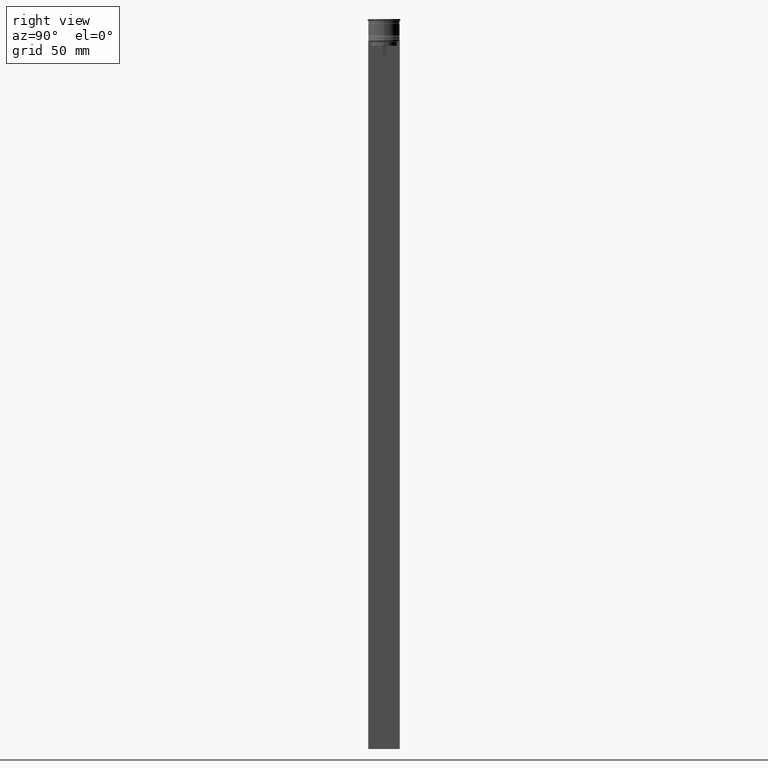
[diagram: clean part render]
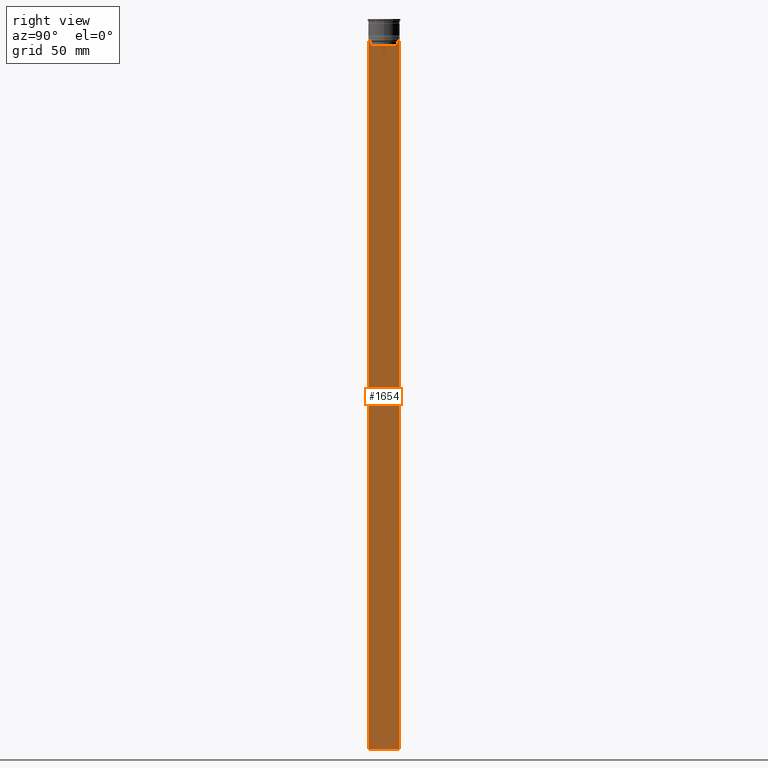
[diagram: same view with one face highlighted and labeled with its STEP entity id]
A machine part, right view. The second image highlights one B-rep face of the part: STEP entity #1654.
In plain terms, the highlighted planar face has unit normal (-1, 0, 0).
Its self-contained STEP definition (entity closure, byte-faithful):
#24 = CARTESIAN_POINT ( 'NONE',  ( 0.5000000000000000000, 8.885943956609230199, -14.00000000000000178 ) ) ;
#26 = ORIENTED_EDGE ( 'NONE', *, *, #1780, .T. ) ;
#85 = VECTOR ( 'NONE', #2593, 1000.000000000000000 ) ;
#148 = ORIENTED_EDGE ( 'NONE', *, *, #708, .T. ) ;
#163 = AXIS2_PLACEMENT_3D ( 'NONE', #1417, #1444, #1217 ) ;
#218 = DIRECTION ( 'NONE',  ( 0.000000000000000000, 0.000000000000000000, -1.000000000000000000 ) ) ;
#224 = EDGE_CURVE ( 'NONE', #2005, #2342, #238, .T. ) ;
#238 = B_SPLINE_CURVE_WITH_KNOTS ( 'NONE', 3,
 ( #476, #2098, #284, #2519 ),
 .UNSPECIFIED., .F., .F.,
 ( 4, 4 ),
 ( 0.03898465126933130243, 0.03969388910599658260 ),
 .UNSPECIFIED. ) ;
#260 = VECTOR ( 'NONE', #2216, 1000.000000000000000 ) ;
#284 = CARTESIAN_POINT ( 'NONE',  ( 0.5000000000000000000, -8.719005764482790966, -14.16667454151159689 ) ) ;
#343 = EDGE_CURVE ( 'NONE', #1700, #2133, #2190, .T. ) ;
#353 = CARTESIAN_POINT ( 'NONE',  ( 0.5000000000000000000, -10.00000000000000178, -14.00000000000000178 ) ) ;
#377 = CARTESIAN_POINT ( 'NONE',  ( 0.5000000000000000000, -10.00000000000000178, -14.00000000000000178 ) ) ;
#403 = CARTESIAN_POINT ( 'NONE',  ( 0.5000000000000000000, 8.385105843100616241, -14.50000000000000000 ) ) ;
#448 = ORIENTED_EDGE ( 'NONE', *, *, #2173, .T. ) ;
#470 = ORIENTED_EDGE ( 'NONE', *, *, #2498, .T. ) ;
#473 = CARTESIAN_POINT ( 'NONE',  ( 0.5000000000000000000, -8.385105843100616241, 0.000000000000000000 ) ) ;
#476 = CARTESIAN_POINT ( 'NONE',  ( 0.5000000000000000000, -8.385105843100616241, -14.50000000000000000 ) ) ;
#577 = ORIENTED_EDGE ( 'NONE', *, *, #2363, .T. ) ;
#588 = VERTEX_POINT ( 'NONE', #1536 ) ;
#589 = CARTESIAN_POINT ( 'NONE',  ( 0.5000000000000000000, 8.885943956609230199, -14.00000000000000178 ) ) ;
#615 = LINE ( 'NONE', #2482, #1241 ) ;
#649 = VECTOR ( 'NONE', #2002, 1000.000000000000000 ) ;
#708 = EDGE_CURVE ( 'NONE', #1750, #1871, #2006, .T. ) ;
#768 = DIRECTION ( 'NONE',  ( 0.000000000000000000, -1.000000000000000000, 0.000000000000000000 ) ) ;
#780 = ORIENTED_EDGE ( 'NONE', *, *, #2158, .T. ) ;
#785 = CARTESIAN_POINT ( 'NONE',  ( 0.5000000000000000000, -10.00000000000000178, -14.00000000000000178 ) ) ;
#791 = LINE ( 'NONE', #2588, #649 ) ;
#799 = ORIENTED_EDGE ( 'NONE', *, *, #224, .T. ) ;
#829 = EDGE_CURVE ( 'NONE', #2471, #885, #1225, .T. ) ;
#869 = VERTEX_POINT ( 'NONE', #1466 ) ;
#885 = VERTEX_POINT ( 'NONE', #403 ) ;
#921 = DIRECTION ( 'NONE',  ( 0.000000000000000000, 0.000000000000000000, -1.000000000000000000 ) ) ;
#1030 = VECTOR ( 'NONE', #1835, 1000.000000000000000 ) ;
#1031 = CARTESIAN_POINT ( 'NONE',  ( 0.5000000000000000000, 8.719005771582347464, -14.16667453442325453 ) ) ;
#1136 = LINE ( 'NONE', #1770, #2495 ) ;
#1181 = CARTESIAN_POINT ( 'NONE',  ( 0.5000000000000000000, -10.00000000000000178, -14.00000000000000178 ) ) ;
#1217 = DIRECTION ( 'NONE',  ( 0.000000000000000000, 0.000000000000000000, 1.000000000000000000 ) ) ;
#1225 = B_SPLINE_CURVE_WITH_KNOTS ( 'NONE', 3,
 ( #589, #1031, #1238, #1428 ),
 .UNSPECIFIED., .F., .F.,
 ( 4, 4 ),
 ( 0.01511546479386908018, 0.01582316445439079997 ),
 .UNSPECIFIED. ) ;
#1229 = ORIENTED_EDGE ( 'NONE', *, *, #343, .T. ) ;
#1238 = CARTESIAN_POINT ( 'NONE',  ( 0.5000000000000000000, 8.552060201981378285, -14.33334167021640582 ) ) ;
#1241 = VECTOR ( 'NONE', #218, 1000.000000000000000 ) ;
#1299 = DIRECTION ( 'NONE',  ( -0.000000000000000000, -0.000000000000000000, 1.000000000000000000 ) ) ;
#1350 = EDGE_LOOP ( 'NONE', ( #780, #1402, #577, #470, #26, #799, #448, #1229, #2302, #2579, #1904, #148 ) ) ;
#1402 = ORIENTED_EDGE ( 'NONE', *, *, #829, .T. ) ;
#1404 = CARTESIAN_POINT ( 'NONE',  ( 0.5000000000000000000, -10.00000000000000178, -14.00000000000000178 ) ) ;
#1408 = CARTESIAN_POINT ( 'NONE',  ( 0.5000000000000000000, -10.00000000000000178, -464.0000000000000000 ) ) ;
#1414 = VECTOR ( 'NONE', #768, 1000.000000000000000 ) ;
#1417 = CARTESIAN_POINT ( 'NONE',  ( 0.5000000000000000000, -10.00000000000000178, 6.024984394500783047 ) ) ;
#1428 = CARTESIAN_POINT ( 'NONE',  ( 0.5000000000000000000, 8.385105843100616241, -14.50000000000000000 ) ) ;
#1433 = PLANE ( 'NONE',  #163 ) ;
#1444 = DIRECTION ( 'NONE',  ( -1.000000000000000000, 0.000000000000000000, 0.000000000000000000 ) ) ;
#1466 = CARTESIAN_POINT ( 'NONE',  ( 0.5000000000000000000, 9.999999999999998224, -464.0000000000000000 ) ) ;
#1536 = CARTESIAN_POINT ( 'NONE',  ( 0.5000000000000000000, 8.385105843100616241, -17.00000000000000000 ) ) ;
#1570 = DIRECTION ( 'NONE',  ( 0.000000000000000000, 0.000000000000000000, -1.000000000000000000 ) ) ;
#1608 = FACE_OUTER_BOUND ( 'NONE', #1350, .T. ) ;
#1628 = VECTOR ( 'NONE', #921, 1000.000000000000000 ) ;
#1654 = ADVANCED_FACE ( 'NONE', ( #1608 ), #1433, .F. ) ;
#1684 = CARTESIAN_POINT ( 'NONE',  ( 0.5000000000000000000, 9.887365675446622149, -14.00000000000000178 ) ) ;
#1700 = VERTEX_POINT ( 'NONE', #2457 ) ;
#1705 = EDGE_CURVE ( 'NONE', #2133, #2403, #615, .T. ) ;
#1714 = CARTESIAN_POINT ( 'NONE',  ( 0.5000000000000000000, 9.999999999999998224, 6.024984394500783047 ) ) ;
#1750 = VERTEX_POINT ( 'NONE', #2082 ) ;
#1770 = CARTESIAN_POINT ( 'NONE',  ( 0.5000000000000000000, 8.385105843100616241, 0.000000000000000000 ) ) ;
#1780 = EDGE_CURVE ( 'NONE', #2585, #2005, #2534, .T. ) ;
#1835 = DIRECTION ( 'NONE',  ( 0.000000000000000000, -1.000000000000000000, 0.000000000000000000 ) ) ;
#1871 = VERTEX_POINT ( 'NONE', #1684 ) ;
#1873 = CARTESIAN_POINT ( 'NONE',  ( 0.5000000000000000000, 8.400000000000003908, -17.00000000000000000 ) ) ;
#1904 = ORIENTED_EDGE ( 'NONE', *, *, #2296, .F. ) ;
#1909 = LINE ( 'NONE', #1714, #1628 ) ;
#1985 = CARTESIAN_POINT ( 'NONE',  ( 0.5000000000000000000, -8.385105843100616241, -14.50000000000000000 ) ) ;
#2001 = VECTOR ( 'NONE', #1299, 1000.000000000000000 ) ;
#2002 = DIRECTION ( 'NONE',  ( 0.000000000000000000, 1.000000000000000000, 0.000000000000000000 ) ) ;
#2005 = VERTEX_POINT ( 'NONE', #1985 ) ;
#2006 = LINE ( 'NONE', #1181, #85 ) ;
#2061 = CARTESIAN_POINT ( 'NONE',  ( 0.5000000000000000000, -8.385105843100616241, -17.00000000000000000 ) ) ;
#2082 = CARTESIAN_POINT ( 'NONE',  ( 0.5000000000000000000, 9.999999999999998224, -14.00000000000000178 ) ) ;
#2098 = CARTESIAN_POINT ( 'NONE',  ( 0.5000000000000000000, -8.552060194457773434, -14.33334167772667023 ) ) ;
#2133 = VERTEX_POINT ( 'NONE', #377 ) ;
#2158 = EDGE_CURVE ( 'NONE', #1871, #2471, #2202, .T. ) ;
#2173 = EDGE_CURVE ( 'NONE', #2342, #1700, #2637, .T. ) ;
#2190 = LINE ( 'NONE', #353, #1414 ) ;
#2202 = LINE ( 'NONE', #1404, #260 ) ;
#2216 = DIRECTION ( 'NONE',  ( 0.000000000000000000, -1.000000000000000000, 0.000000000000000000 ) ) ;
#2233 = DIRECTION ( 'NONE',  ( 0.000000000000000000, -1.000000000000000000, 0.000000000000000000 ) ) ;
#2296 = EDGE_CURVE ( 'NONE', #1750, #869, #1909, .T. ) ;
#2302 = ORIENTED_EDGE ( 'NONE', *, *, #1705, .T. ) ;
#2342 = VERTEX_POINT ( 'NONE', #2389 ) ;
#2363 = EDGE_CURVE ( 'NONE', #885, #588, #1136, .T. ) ;
#2365 = VECTOR ( 'NONE', #2233, 1000.000000000000000 ) ;
#2389 = CARTESIAN_POINT ( 'NONE',  ( 0.5000000000000000000, -8.885943956609230199, -14.00000000000000178 ) ) ;
#2393 = EDGE_CURVE ( 'NONE', #2403, #869, #791, .T. ) ;
#2403 = VERTEX_POINT ( 'NONE', #1408 ) ;
#2457 = CARTESIAN_POINT ( 'NONE',  ( 0.5000000000000000000, -9.887365675446622149, -14.00000000000000178 ) ) ;
#2471 = VERTEX_POINT ( 'NONE', #24 ) ;
#2473 = LINE ( 'NONE', #1873, #1030 ) ;
#2482 = CARTESIAN_POINT ( 'NONE',  ( 0.5000000000000000000, -10.00000000000000178, 6.024984394500783047 ) ) ;
#2495 = VECTOR ( 'NONE', #1570, 1000.000000000000000 ) ;
#2498 = EDGE_CURVE ( 'NONE', #588, #2585, #2473, .T. ) ;
#2519 = CARTESIAN_POINT ( 'NONE',  ( 0.5000000000000000000, -8.885943956609230199, -14.00000000000000178 ) ) ;
#2534 = LINE ( 'NONE', #473, #2001 ) ;
#2579 = ORIENTED_EDGE ( 'NONE', *, *, #2393, .T. ) ;
#2585 = VERTEX_POINT ( 'NONE', #2061 ) ;
#2588 = CARTESIAN_POINT ( 'NONE',  ( 0.5000000000000000000, -10.00000000000000178, -464.0000000000000000 ) ) ;
#2593 = DIRECTION ( 'NONE',  ( 0.000000000000000000, -1.000000000000000000, 0.000000000000000000 ) ) ;
#2637 = LINE ( 'NONE', #785, #2365 ) ;